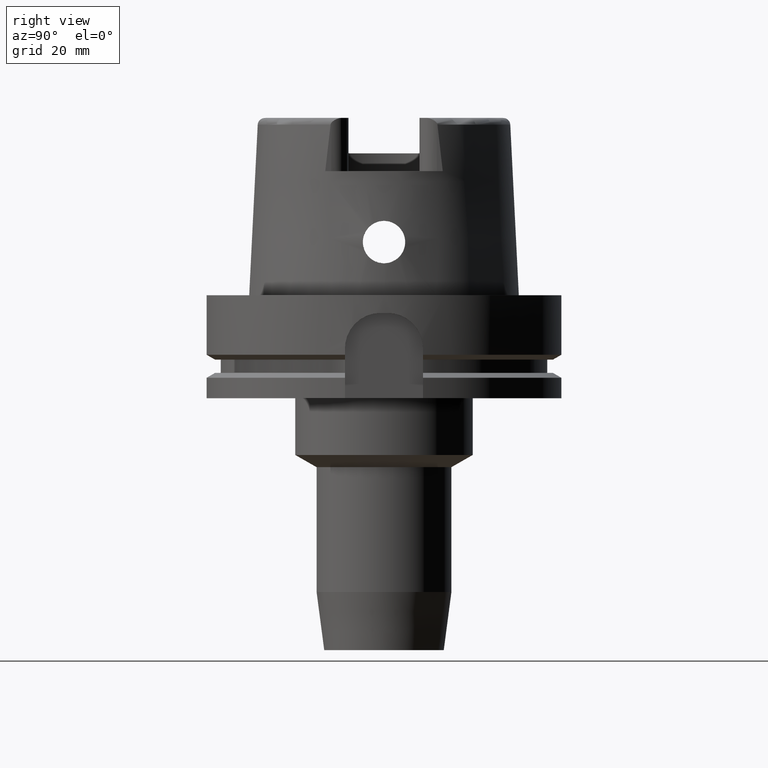
[diagram: clean part render]
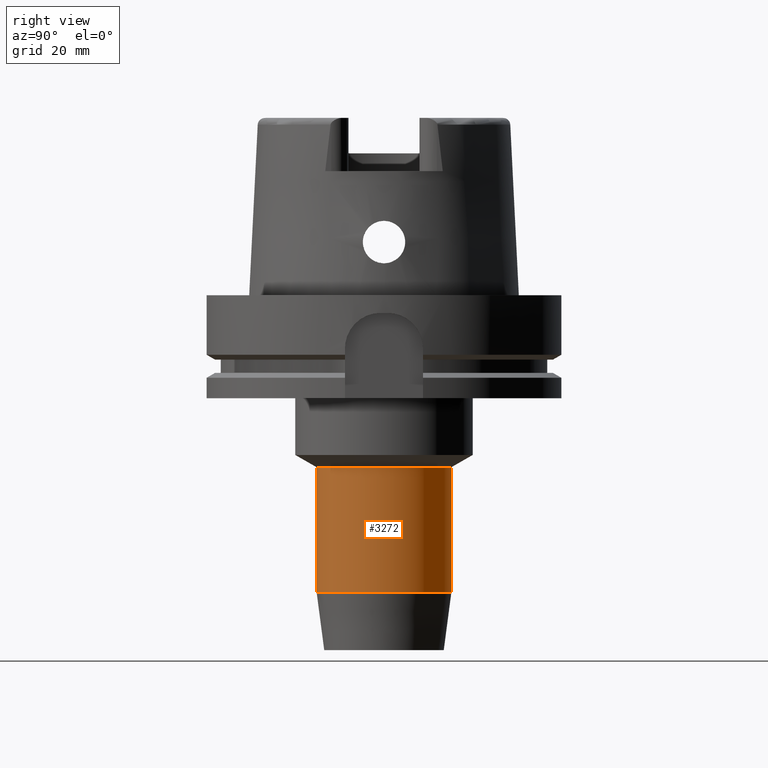
[diagram: same view with one face highlighted and labeled with its STEP entity id]
A machine part, right view. The second image highlights one B-rep face of the part: STEP entity #3272.
In plain terms, the highlighted cylindrical surface (partial cylindrical patch) has radius 19 mm, axis along (0, 0, 1).
Its self-contained STEP definition (entity closure, byte-faithful):
#1056=CARTESIAN_POINT('',(0.E0,0.E0,-8.363494776413E1));
#1057=DIRECTION('',(0.E0,0.E0,1.E0));
#1058=DIRECTION('',(0.E0,-1.E0,0.E0));
#1059=AXIS2_PLACEMENT_3D('',#1056,#1057,#1058);
#1079=DIRECTION('',(0.E0,2.241050285010E-14,-1.E0));
#1080=VECTOR('',#1079,3.519342881190E1);
#1081=CARTESIAN_POINT('',(0.E0,-1.9E1,-4.844151895223E1));
#1082=LINE('',#1081,#1080);
#1086=DIRECTION('',(0.E0,-2.241050285010E-14,-1.E0));
#1087=VECTOR('',#1086,3.519342881190E1);
#1088=CARTESIAN_POINT('',(0.E0,1.9E1,-4.844151895223E1));
#1089=LINE('',#1088,#1087);
#1100=CARTESIAN_POINT('',(0.E0,0.E0,-4.844151895223E1));
#1101=DIRECTION('',(0.E0,0.E0,-1.E0));
#1102=DIRECTION('',(0.E0,1.E0,0.E0));
#1103=AXIS2_PLACEMENT_3D('',#1100,#1101,#1102);
#2330=CARTESIAN_POINT('',(0.E0,1.9E1,-8.363494776413E1));
#2331=VERTEX_POINT('',#2330);
#2332=CARTESIAN_POINT('',(0.E0,-1.9E1,-8.363494776413E1));
#2333=VERTEX_POINT('',#2332);
#2334=CARTESIAN_POINT('',(0.E0,1.9E1,-4.844151895223E1));
#2335=VERTEX_POINT('',#2334);
#2336=CARTESIAN_POINT('',(0.E0,-1.9E1,-4.844151895223E1));
#2337=VERTEX_POINT('',#2336);
#3260=CARTESIAN_POINT('',(0.E0,0.E0,-1.075E2));
#3261=DIRECTION('',(0.E0,0.E0,1.E0));
#3262=DIRECTION('',(0.E0,1.E0,0.E0));
#3263=AXIS2_PLACEMENT_3D('',#3260,#3261,#3262);
#3264=CYLINDRICAL_SURFACE('',#3263,1.9E1);
#3265=ORIENTED_EDGE('',*,*,#3250,.T.);
#3266=ORIENTED_EDGE('',*,*,#3227,.F.);
#3267=ORIENTED_EDGE('',*,*,#3254,.F.);
#3269=ORIENTED_EDGE('',*,*,#3268,.F.);
#3270=EDGE_LOOP('',(#3265,#3266,#3267,#3269));
#3271=FACE_OUTER_BOUND('',#3270,.F.);
#1060=CIRCLE('',#1059,1.9E1);
#1104=CIRCLE('',#1103,1.9E1);
#3227=EDGE_CURVE('',#2333,#2331,#1060,.T.);
#3250=EDGE_CURVE('',#2335,#2331,#1089,.T.);
#3254=EDGE_CURVE('',#2337,#2333,#1082,.T.);
#3268=EDGE_CURVE('',#2335,#2337,#1104,.T.);
#3272=ADVANCED_FACE('',(#3271),#3264,.T.);